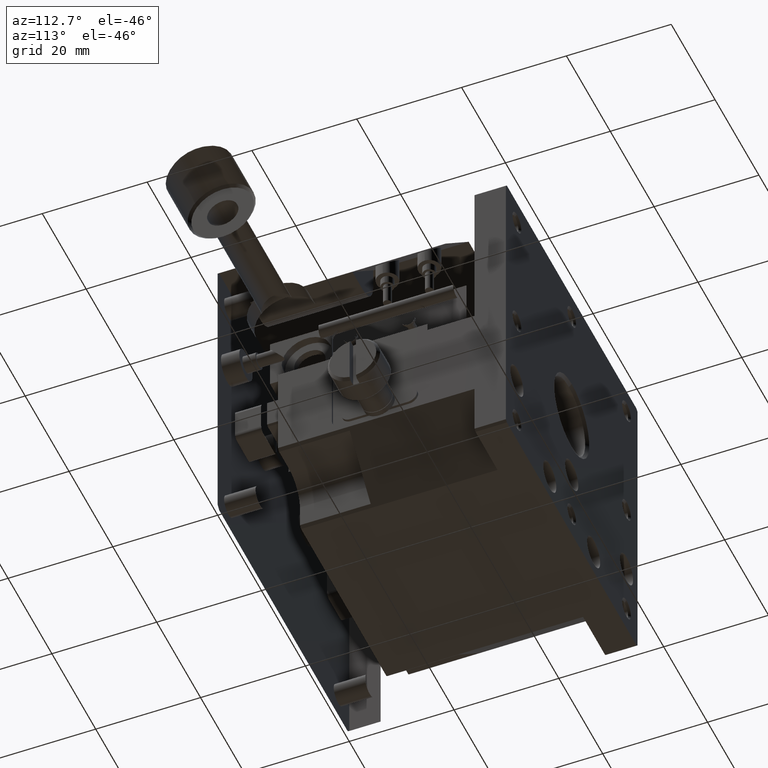
[diagram: clean part render]
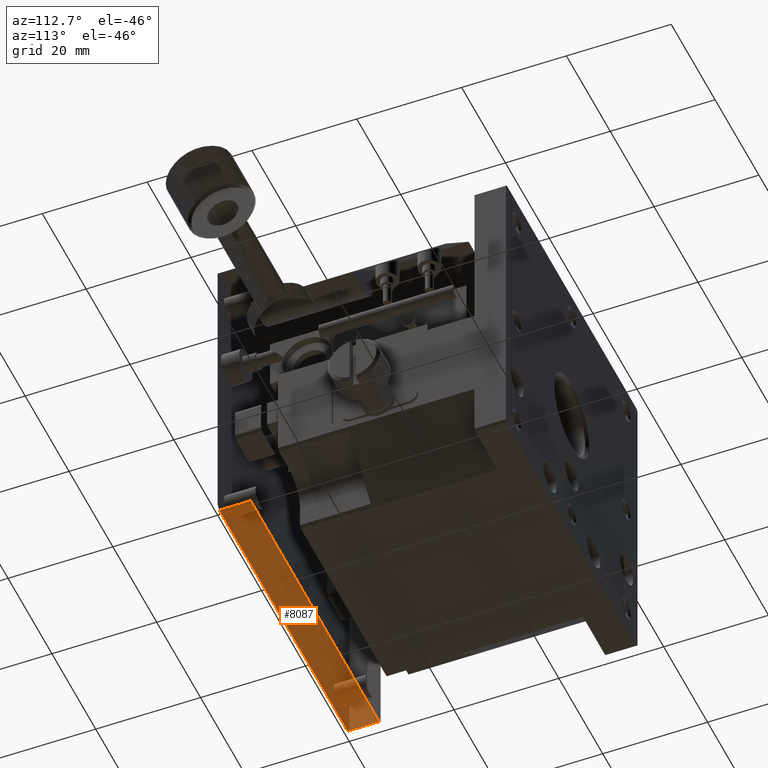
[diagram: same view with one face highlighted and labeled with its STEP entity id]
A machine part, auxiliary view. The second image highlights one B-rep face of the part: STEP entity #8087.
In plain terms, the highlighted planar face has unit normal (0, 0, 1).
Its self-contained STEP definition (entity closure, byte-faithful):
#769 = DIRECTION ( 'NONE',  ( 1.000000000000000000, 0.000000000000000000, -0.000000000000000000 ) ) ;
#912 = CARTESIAN_POINT ( 'NONE',  ( 59.28999999999999915, 6.000000000000000000, -60.00000000000000000 ) ) ;
#1410 = CARTESIAN_POINT ( 'NONE',  ( 59.28999999999999915, 6.000000000000000000, -60.00000000000000000 ) ) ;
#1782 = EDGE_LOOP ( 'NONE', ( #9818, #5383, #2392, #6138 ) ) ;
#1939 = CARTESIAN_POINT ( 'NONE',  ( 0.7100000000000080691, 0.000000000000000000, -60.00000000000000000 ) ) ;
#2079 = VECTOR ( 'NONE', #8704, 1000.000000000000000 ) ;
#2392 = ORIENTED_EDGE ( 'NONE', *, *, #9230, .T. ) ;
#2580 = FACE_OUTER_BOUND ( 'NONE', #1782, .T. ) ;
#2697 = DIRECTION ( 'NONE',  ( -1.000000000000000000, -0.000000000000000000, 0.000000000000000000 ) ) ;
#3081 = VERTEX_POINT ( 'NONE', #912 ) ;
#4174 = LINE ( 'NONE', #1410, #9445 ) ;
#5160 = CARTESIAN_POINT ( 'NONE',  ( 59.28999999999999915, -1.951563910473907981E-15, -60.00000000000000000 ) ) ;
#5163 = CARTESIAN_POINT ( 'NONE',  ( 59.28999999999999915, 6.000000000000000000, -60.00000000000000000 ) ) ;
#5222 = PLANE ( 'NONE',  #11491 ) ;
#5342 = VERTEX_POINT ( 'NONE', #1939 ) ;
#5383 = ORIENTED_EDGE ( 'NONE', *, *, #8047, .F. ) ;
#5989 = DIRECTION ( 'NONE',  ( -0.000000000000000000, 1.000000000000000000, 0.000000000000000000 ) ) ;
#6044 = LINE ( 'NONE', #11422, #2079 ) ;
#6138 = ORIENTED_EDGE ( 'NONE', *, *, #11522, .T. ) ;
#7697 = EDGE_CURVE ( 'NONE', #9124, #5342, #11493, .T. ) ;
#7886 = CARTESIAN_POINT ( 'NONE',  ( 0.7100000000000092903, 6.000000000000000000, -60.00000000000000000 ) ) ;
#8047 = EDGE_CURVE ( 'NONE', #10457, #5342, #6044, .T. ) ;
#8087 = ADVANCED_FACE ( 'NONE', ( #2580 ), #5222, .T. ) ;
#8434 = VECTOR ( 'NONE', #2697, 1000.000000000000000 ) ;
#8704 = DIRECTION ( 'NONE',  ( -1.000000000000000000, -0.000000000000000000, 0.000000000000000000 ) ) ;
#8755 = DIRECTION ( 'NONE',  ( 0.000000000000000000, 0.000000000000000000, 1.000000000000000000 ) ) ;
#8809 = CARTESIAN_POINT ( 'NONE',  ( 59.28999999999999915, 6.000000000000000000, -60.00000000000000000 ) ) ;
#9124 = VERTEX_POINT ( 'NONE', #11368 ) ;
#9230 = EDGE_CURVE ( 'NONE', #10457, #3081, #4174, .T. ) ;
#9445 = VECTOR ( 'NONE', #5989, 1000.000000000000000 ) ;
#9770 = DIRECTION ( 'NONE',  ( 0.000000000000000000, -1.000000000000000000, -0.000000000000000000 ) ) ;
#9810 = LINE ( 'NONE', #5163, #8434 ) ;
#9818 = ORIENTED_EDGE ( 'NONE', *, *, #7697, .T. ) ;
#10457 = VERTEX_POINT ( 'NONE', #5160 ) ;
#10533 = VECTOR ( 'NONE', #9770, 1000.000000000000000 ) ;
#11368 = CARTESIAN_POINT ( 'NONE',  ( 0.7100000000000086242, 6.000000000000000000, -60.00000000000000000 ) ) ;
#11422 = CARTESIAN_POINT ( 'NONE',  ( 0.000000000000000000, 0.000000000000000000, -60.00000000000000000 ) ) ;
#11491 = AXIS2_PLACEMENT_3D ( 'NONE', #8809, #8755, #769 ) ;
#11493 = LINE ( 'NONE', #7886, #10533 ) ;
#11522 = EDGE_CURVE ( 'NONE', #3081, #9124, #9810, .T. ) ;